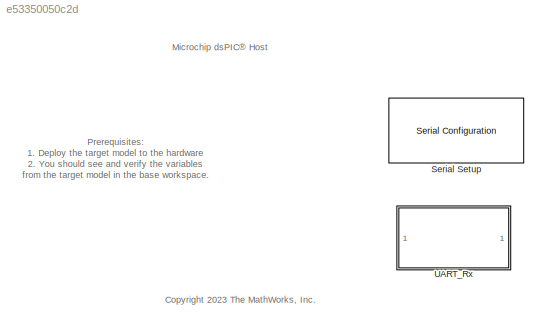
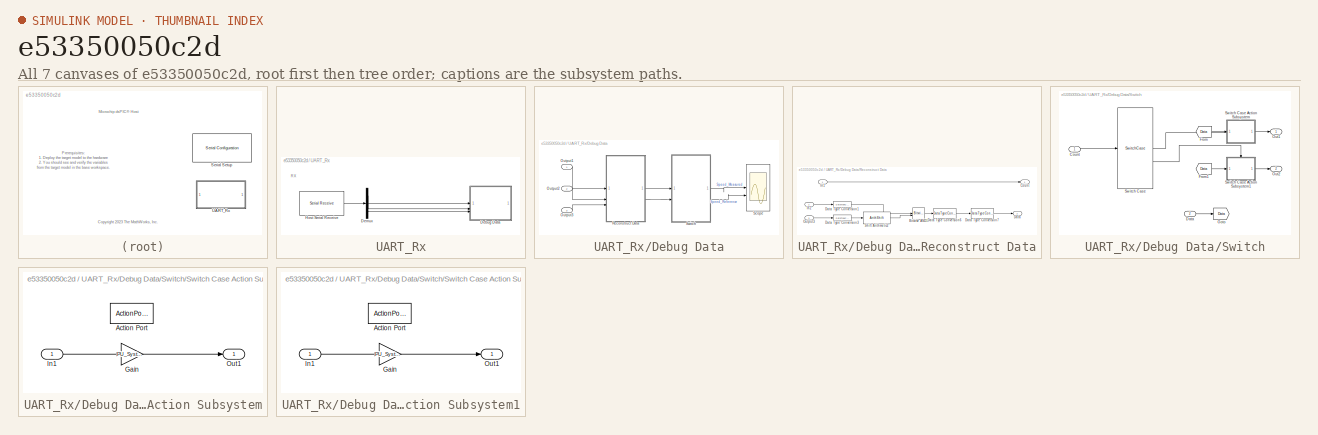
[diagram: thumbnail index - all 7 canvases of the model, root first then tree order]
MODEL slx_e53350050c2d
KIND model
CONFIG AbsTol = auto
CONFIG EnableMultiTasking = on
CONFIG FixedStep = auto
CONFIG MaxStep = auto
CONFIG MinStep = auto
CONFIG RelTol = 1e-3
CONFIG SampleTimeConstraint = Unconstrained
CONFIG SolverName = FixedStepDiscrete
CONFIG StartTime = 0.0
CONFIG StopTime = inf
BLOCK [Reference] Serial Setup  REF=instrumentseriallib/Serial Configuration
  Priority = -99
  SourceBlock = instrumentseriallib/Serial Configuration
  SourceType = system.SerialConfiguration
BLOCK [SubSystem] UART_Rx
BLOCK [SubSystem] UART_Rx/Debug Data
BLOCK [Inport] UART_Rx/Debug Data/Output1
BLOCK [Inport] UART_Rx/Debug Data/Output2
  Port = 2
BLOCK [Inport] UART_Rx/Debug Data/Output3
  Port = 3
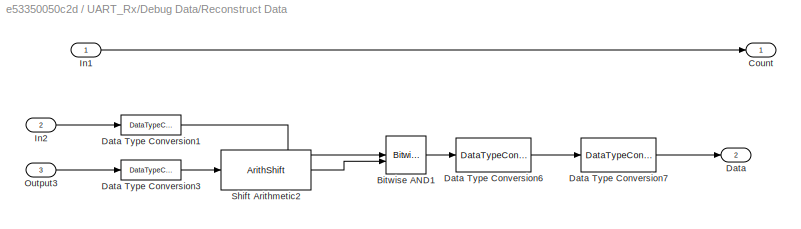
BLOCK [SubSystem] UART_Rx/Debug Data/Reconstruct Data
BLOCK [Reference] UART_Rx/Debug Data/Reconstruct Data/Bitwise AND1  REF=simulink/Logic and Bit
Operations/Bitwise
Operator
  SourceBlock = simulink/Logic and Bit\nOperations/Bitwise\nOperator
  SourceType = Bitwise Operator
BLOCK [Outport] UART_Rx/Debug Data/Reconstruct Data/Count
BLOCK [Outport] UART_Rx/Debug Data/Reconstruct Data/Data
  Port = 2
BLOCK [DataTypeConversion] UART_Rx/Debug Data/Reconstruct Data/Data Type Conversion1
  OutDataTypeStr = uint32
  RndMeth = Simplest
  SaturateOnIntegerOverflow = off
BLOCK [DataTypeConversion] UART_Rx/Debug Data/Reconstruct Data/Data Type Conversion3
  OutDataTypeStr = uint32
  RndMeth = Simplest
  SaturateOnIntegerOverflow = off
BLOCK [DataTypeConversion] UART_Rx/Debug Data/Reconstruct Data/Data Type Conversion6
  ConvertRealWorld = Stored Integer (SI)
  OutDataTypeStr = dataType
  RndMeth = Simplest
  SaturateOnIntegerOverflow = off
BLOCK [DataTypeConversion] UART_Rx/Debug Data/Reconstruct Data/Data Type Conversion7
  OutDataTypeStr = single
  RndMeth = Simplest
  SaturateOnIntegerOverflow = off
BLOCK [Inport] UART_Rx/Debug Data/Reconstruct Data/In1
BLOCK [Inport] UART_Rx/Debug Data/Reconstruct Data/In2
  Port = 2
BLOCK [Inport] UART_Rx/Debug Data/Reconstruct Data/Output3
  Port = 3
BLOCK [ArithShift] UART_Rx/Debug Data/Reconstruct Data/Shift Arithmetic2
  BitShiftDirection = Left
  BitShiftNumber = 8
  InputPortMap = u0
BLOCK [Scope] UART_Rx/Debug Data/Scope
  Floating = off
  NumInputPorts = 2
  ScopeSpecificationString = Simulink.scopes.TimeScopeBlockCfg('CurrentConfiguration', extmgr.ConfigurationSet(extmgr.Configuration('Core','General UI',true,'FigureColor',[0 0 0]),extmgr.Configuration('Core','Source UI',true),extmgr.Configuration('Sources','WiredSimulink',true),extmgr.Configuration('Visuals','Time Domain',true,'SerializedDisplays',{struct('MinYLimReal','-4846.01428','MaxYLimReal','3924.92932','YLabelReal','',...<+2346ch>
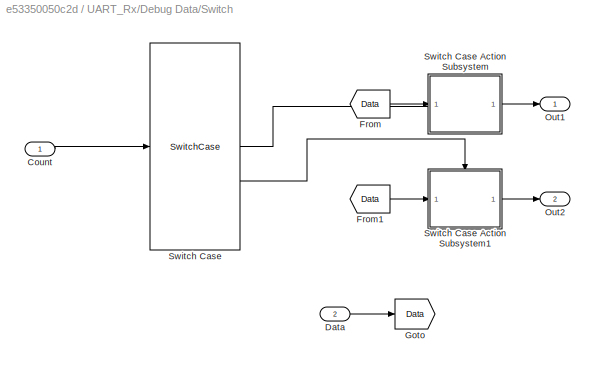
BLOCK [SubSystem] UART_Rx/Debug Data/Switch
BLOCK [Inport] UART_Rx/Debug Data/Switch/Count
BLOCK [Inport] UART_Rx/Debug Data/Switch/Data
  Port = 2
BLOCK [From] UART_Rx/Debug Data/Switch/From
  GotoTag = Data
BLOCK [From] UART_Rx/Debug Data/Switch/From1
  GotoTag = Data
BLOCK [Goto] UART_Rx/Debug Data/Switch/Goto
  GotoTag = Data
BLOCK [Outport] UART_Rx/Debug Data/Switch/Out1
BLOCK [Outport] UART_Rx/Debug Data/Switch/Out2
  Port = 2
BLOCK [SwitchCase] UART_Rx/Debug Data/Switch/Switch Case
  CaseConditions = {0,1}
  ShowDefaultCase = off
BLOCK [SubSystem] UART_Rx/Debug Data/Switch/Switch Case Action Subsystem
  TreatAsAtomicUnit = on
BLOCK [ActionPort] UART_Rx/Debug Data/Switch/Switch Case Action Subsystem/Action Port
  ActionPortLabel = case [ 0 ]:
BLOCK [Gain] UART_Rx/Debug Data/Switch/Switch Case Action Subsystem/Gain
  Gain = PU_System.N_base
BLOCK [Inport] UART_Rx/Debug Data/Switch/Switch Case Action Subsystem/In1
BLOCK [Outport] UART_Rx/Debug Data/Switch/Switch Case Action Subsystem/Out1
BLOCK [SubSystem] UART_Rx/Debug Data/Switch/Switch Case Action Subsystem1
  TreatAsAtomicUnit = on
BLOCK [ActionPort] UART_Rx/Debug Data/Switch/Switch Case Action Subsystem1/Action Port
  ActionPortLabel = case [ 1 ]:
BLOCK [Gain] UART_Rx/Debug Data/Switch/Switch Case Action Subsystem1/Gain
  Gain = PU_System.N_base
BLOCK [Inport] UART_Rx/Debug Data/Switch/Switch Case Action Subsystem1/In1
BLOCK [Outport] UART_Rx/Debug Data/Switch/Switch Case Action Subsystem1/Out1
BLOCK [Demux] UART_Rx/Demux
  Outputs = 3
BLOCK [Reference] UART_Rx/Host Serial Receive  REF=instrumentseriallib/Serial Receive
  SourceBlock = instrumentseriallib/Serial Receive
  SourceType = system.SerialReceive
ANNOTATION (root): Prerequisites : 1. Deploy the target model to the hardware 2. You should see and verify the variables from the target model in the base workspace.
ANNOTATION (root): Microchip dsPIC® Host
ANNOTATION (root): <copyright redacted>
ANNOTATION UART_Rx: RX
LINE UART_Rx/Debug Data/Output1:1 -> UART_Rx/Debug Data/Reconstruct Data:1
LINE UART_Rx/Debug Data/Output2:1 -> UART_Rx/Debug Data/Reconstruct Data:2
LINE UART_Rx/Debug Data/Output3:1 -> UART_Rx/Debug Data/Reconstruct Data:3
LINE UART_Rx/Debug Data/Reconstruct Data/Bitwise AND1:1 -> UART_Rx/Debug Data/Reconstruct Data/Data Type Conversion6:1
LINE UART_Rx/Debug Data/Reconstruct Data/Data Type Conversion1:1 -> UART_Rx/Debug Data/Reconstruct Data/Bitwise AND1:1
LINE UART_Rx/Debug Data/Reconstruct Data/Data Type Conversion3:1 -> UART_Rx/Debug Data/Reconstruct Data/Shift Arithmetic2:1
LINE UART_Rx/Debug Data/Reconstruct Data/Data Type Conversion6:1 -> UART_Rx/Debug Data/Reconstruct Data/Data Type Conversion7:1
LINE UART_Rx/Debug Data/Reconstruct Data/Data Type Conversion7:1 -> UART_Rx/Debug Data/Reconstruct Data/Data:1
LINE UART_Rx/Debug Data/Reconstruct Data/In1:1 -> UART_Rx/Debug Data/Reconstruct Data/Count:1
LINE UART_Rx/Debug Data/Reconstruct Data/In2:1 -> UART_Rx/Debug Data/Reconstruct Data/Data Type Conversion1:1
LINE UART_Rx/Debug Data/Reconstruct Data/Output3:1 -> UART_Rx/Debug Data/Reconstruct Data/Data Type Conversion3:1
LINE UART_Rx/Debug Data/Reconstruct Data/Shift Arithmetic2:1 -> UART_Rx/Debug Data/Reconstruct Data/Bitwise AND1:2
LINE UART_Rx/Debug Data/Reconstruct Data:1 -> UART_Rx/Debug Data/Switch:1
LINE UART_Rx/Debug Data/Reconstruct Data:2 -> UART_Rx/Debug Data/Switch:2
LINE UART_Rx/Debug Data/Switch/Count:1 -> UART_Rx/Debug Data/Switch/Switch Case:1
LINE UART_Rx/Debug Data/Switch/Data:1 -> UART_Rx/Debug Data/Switch/Goto:1
LINE UART_Rx/Debug Data/Switch/From1:1 -> UART_Rx/Debug Data/Switch/Switch Case Action Subsystem1:1
LINE UART_Rx/Debug Data/Switch/From:1 -> UART_Rx/Debug Data/Switch/Switch Case Action Subsystem:1
LINE UART_Rx/Debug Data/Switch/Switch Case Action Subsystem/Gain:1 -> UART_Rx/Debug Data/Switch/Switch Case Action Subsystem/Out1:1
LINE UART_Rx/Debug Data/Switch/Switch Case Action Subsystem/In1:1 -> UART_Rx/Debug Data/Switch/Switch Case Action Subsystem/Gain:1
LINE UART_Rx/Debug Data/Switch/Switch Case Action Subsystem1/Gain:1 -> UART_Rx/Debug Data/Switch/Switch Case Action Subsystem1/Out1:1
LINE UART_Rx/Debug Data/Switch/Switch Case Action Subsystem1/In1:1 -> UART_Rx/Debug Data/Switch/Switch Case Action Subsystem1/Gain:1
LINE UART_Rx/Debug Data/Switch/Switch Case Action Subsystem1:1 -> UART_Rx/Debug Data/Switch/Out2:1
LINE UART_Rx/Debug Data/Switch/Switch Case Action Subsystem:1 -> UART_Rx/Debug Data/Switch/Out1:1
LINE UART_Rx/Debug Data/Switch/Switch Case:1 -> UART_Rx/Debug Data/Switch/Switch Case Action Subsystem:ifaction
LINE UART_Rx/Debug Data/Switch/Switch Case:2 -> UART_Rx/Debug Data/Switch/Switch Case Action Subsystem1:ifaction
LINE UART_Rx/Debug Data/Switch:1 -> UART_Rx/Debug Data/Scope:1
LINE UART_Rx/Debug Data/Switch:2 -> UART_Rx/Debug Data/Scope:2
LINE UART_Rx/Demux:1 -> UART_Rx/Debug Data:1
LINE UART_Rx/Demux:2 -> UART_Rx/Debug Data:2
LINE UART_Rx/Demux:3 -> UART_Rx/Debug Data:3
LINE UART_Rx/Host Serial Receive:1 -> UART_Rx/Demux:1
